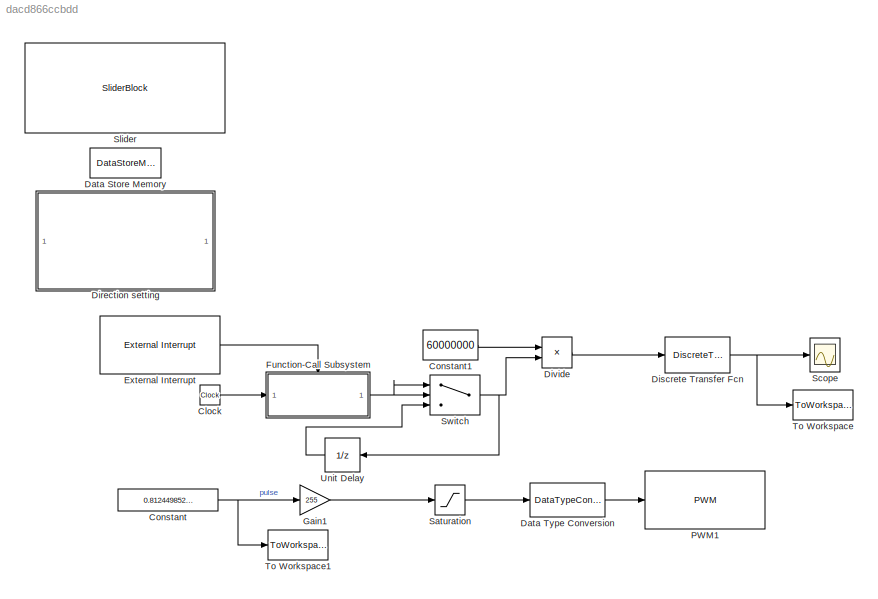
MODEL slx_dacd866ccbdd
KIND model
CONFIG AbsTol = auto
CONFIG EnableMultiTasking = off
CONFIG FixedStep = 0.01
CONFIG MaxStep = auto
CONFIG MinStep = auto
CONFIG RelTol = 1e-3
CONFIG SampleTimeConstraint = Unconstrained
CONFIG SolverName = ode4
CONFIG StartTime = 0.0
CONFIG StopTime = 5
BLOCK [Clock] Clock
BLOCK [Constant] Constant
  OutMax = 1
  OutMin = 0
  Value = 0.8124498529018455
BLOCK [Constant] Constant1
  Value = 60000000
BLOCK [DataStoreMemory] Data Store Memory
  DataStoreName = Previous_Time
  OutDataTypeStr = uint32
  ShowAdditionalParam = off
  SignalType = real
  WriteAfterWriteMsg = warning
BLOCK [DataTypeConversion] Data Type Conversion
  OutDataTypeStr = uint8
  RndMeth = Floor
  SaturateOnIntegerOverflow = off
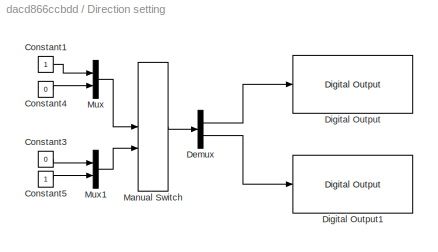
BLOCK [SubSystem] Direction setting
BLOCK [Constant] Direction setting/Constant1
  OutDataTypeStr = uint8
  OutMax = 1
  OutMin = 0
BLOCK [Constant] Direction setting/Constant3
  OutDataTypeStr = uint8
  OutMax = 1
  OutMin = 0
  Value = 0
BLOCK [Constant] Direction setting/Constant4
  OutDataTypeStr = uint8
  OutMax = 1
  OutMin = 0
  Value = 0
BLOCK [Constant] Direction setting/Constant5
  OutDataTypeStr = uint8
  OutMax = 1
  OutMin = 0
BLOCK [Demux] Direction setting/Demux
  Outputs = 2
BLOCK [Reference] Direction setting/Digital Output  REF=arduinolib/Digital Output
  SourceBlock = arduinolib/Digital Output
  SourceType = Arduino Digital Output
BLOCK [Reference] Direction setting/Digital Output1  REF=arduinolib/Digital Output
  SourceBlock = arduinolib/Digital Output
  SourceType = Arduino Digital Output
BLOCK [ManualSwitch] Direction setting/Manual Switch
BLOCK [Mux] Direction setting/Mux
  DisplayOption = bar
  Inputs = 2
BLOCK [Mux] Direction setting/Mux1
  DisplayOption = bar
  Inputs = 2
BLOCK [DiscreteTransferFcn] Discrete Transfer Fcn
  CloseFcn = dspblkCoreblockFVToolHelper(gcbh,'close');
  CopyFcn = dspblkCoreblockFVToolHelper(gcbh,'copy');
  DeleteFcn = dspblkCoreblockFVToolHelper(gcbh,'close');
  Denominator = [1 -0.9]
  InputPortMap = u0
  LoadFcn = dspblkCoreblockFVToolHelper(gcbh,'load');
  ModelCloseFcn = dspblkCoreblockFVToolHelper(gcbh,'close');
  Numerator = [0.1]
  PostSaveFcn = dspblkCoreblockFVToolHelper(gcbh,'postsave');
  PreSaveFcn = dspblkCoreblockFVToolHelper(gcbh,'presave');
BLOCK [Product] Divide
  Inputs = */
BLOCK [Reference] External Interrupt  REF=arduinolib/External Interrupt
  SourceBlock = arduinolib/External Interrupt
  SourceType = Arduino Interrupt Block
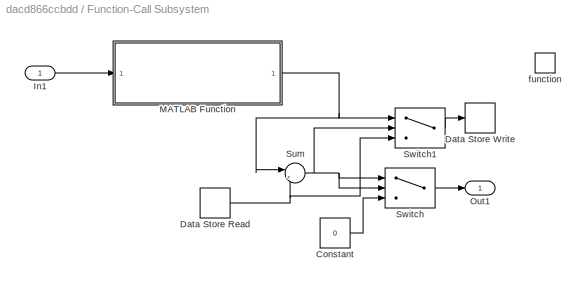
BLOCK [SubSystem] Function-Call Subsystem
  TreatAsAtomicUnit = on
BLOCK [Constant] Function-Call Subsystem/Constant
  Value = 0
BLOCK [DataStoreRead] Function-Call Subsystem/Data Store Read
  DataStoreName = Previous_Time
  IndexOptions = Index vector (dialog)
  Indices = 1
  OutputSizes = 1
  Priority = 1
BLOCK [DataStoreWrite] Function-Call Subsystem/Data Store Write
  DataStoreName = Previous_Time
  IndexOptions = Index vector (dialog)
  Indices = 1
  OutputSizes = 1
  Priority = 10
BLOCK [Inport] Function-Call Subsystem/In1
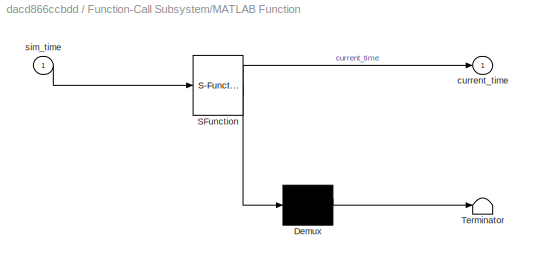
BLOCK [SubSystem] Function-Call Subsystem/MATLAB Function
  ErrorFcn = Stateflow.Translate.translate
  PermitHierarchicalResolution = ExplicitOnly
  SFBlockType = MATLAB Function
  TreatAsAtomicUnit = on
BLOCK [Demux] Function-Call Subsystem/MATLAB Function/ Demux 
  Outputs = 1
BLOCK [S-Function] Function-Call Subsystem/MATLAB Function/ SFunction 
  EnableBusSupport = off
  FunctionName = sf_sfun
  PortCounts = [1 2]
  SFcnIsStateOwnerBlock = off
  SFunctionDeploymentMode = off
  Tag = Stateflow S-Function 2
BLOCK [Terminator] Function-Call Subsystem/MATLAB Function/ Terminator 
BLOCK [Outport] Function-Call Subsystem/MATLAB Function/current_time
BLOCK [Inport] Function-Call Subsystem/MATLAB Function/sim_time
BLOCK [Outport] Function-Call Subsystem/Out1
BLOCK [Sum] Function-Call Subsystem/Sum
  Inputs = |+-
BLOCK [Switch] Function-Call Subsystem/Switch
  Criteria = u2 > Threshold
  InputSameDT = off
  SaturateOnIntegerOverflow = off
  Threshold = 2000
BLOCK [Switch] Function-Call Subsystem/Switch1
  Criteria = u2 > Threshold
  InputSameDT = off
  SaturateOnIntegerOverflow = off
  Threshold = 2000
BLOCK [TriggerPort] Function-Call Subsystem/function
  StatesWhenEnabling = held
  TriggerType = function-call
  VariantControl = (inherit)
BLOCK [Gain] Gain1
  Gain = 255
BLOCK [Reference] PWM1  REF=arduinolib/PWM
  SourceBlock = arduinolib/PWM
  SourceType = Arduino PWM
BLOCK [Saturate] Saturation
  LowerLimit = 0
  UpperLimit = 255
BLOCK [Scope] Scope
  ActiveDisplayYMaximum = 30812.632486585077
  ActiveDisplayYMinimum = -3423.6258318427854
  Floating = off
  GraphicalSettings = {"Style":{"BackgroundColor":[0.12941176470588237,0.12941176470588237,0.12941176470588237],"AxesColor":[0.07058823529411765,0.07058823529411765,0.07058823529411765],"LabelsColor":[0.8509803921568627,0.8509803921568627,0.8509803921568627],"PreserveColors":false,"Visible":[true],"LineStyle":["-"],"LineWidth":[1.5],"BarWidth":[0.9],"LineColor":["auto"],"LineFaceAlpha":[1],"LineEdgeAlpha":[1],"Marker":...<+2027ch>
  MultipleDisplayCache = [{"MaxYLimMag":30812.632486585077,"MaxYLimReal":30812.632486585077,"MinYLimMag":0,"MinYLimReal":-3423.6258318427854,"PlotAsMagnitudePhase":false,"ShowGrid":true,"ShowLegend":false,"Title":"%<SignalLabel>","YLabel":""}]
  NumInputPorts = 1
  ScopeFrameLocation = window
  WasSavedAsWebScope = on
  WindowPosition = [1018.000000,371.000000,451.000000,420.000000,]
BLOCK [SliderBlock] Slider
  ScaleMax = 1
BLOCK [Switch] Switch
  Criteria = u2 > Threshold
  InputSameDT = off
  SaturateOnIntegerOverflow = off
BLOCK [ToWorkspace] To Workspace
  FixptAsFi = on
  MaxDataPoints = inf
  SampleTime = -1
  SaveFormat = Timeseries
  VariableName = outputesp
BLOCK [ToWorkspace] To Workspace1
  FixptAsFi = on
  MaxDataPoints = inf
  SampleTime = -1
  SaveFormat = Timeseries
  VariableName = espdesire
BLOCK [UnitDelay] Unit Delay
  HasFrameUpgradeWarning = on
  InitialCondition = 60000000
  NameLocation = top
  SampleTime = -1
LINE Clock:1 -> Function-Call Subsystem:1
LINE Constant1:1 -> Divide:1
NET Constant:1 -> Gain1:1, To Workspace1:1
LINE Data Type Conversion:1 -> PWM1:1
LINE Direction setting/Constant1:1 -> Direction setting/Mux:1
LINE Direction setting/Constant3:1 -> Direction setting/Mux1:1
LINE Direction setting/Constant4:1 -> Direction setting/Mux:2
LINE Direction setting/Constant5:1 -> Direction setting/Mux1:2
LINE Direction setting/Demux:1 -> Direction setting/Digital Output:1
LINE Direction setting/Demux:2 -> Direction setting/Digital Output1:1
LINE Direction setting/Manual Switch:1 -> Direction setting/Demux:1
LINE Direction setting/Mux1:1 -> Direction setting/Manual Switch:2
LINE Direction setting/Mux:1 -> Direction setting/Manual Switch:1
NET Discrete Transfer Fcn:1 -> Scope:1, To Workspace:1
LINE Divide:1 -> Discrete Transfer Fcn:1
LINE External Interrupt:1 -> Function-Call Subsystem:trigger
LINE Function-Call Subsystem/Constant:1 -> Function-Call Subsystem/Switch:3
NET Function-Call Subsystem/Data Store Read:1 -> Function-Call Subsystem/Sum:2, Function-Call Subsystem/Switch1:3
LINE Function-Call Subsystem/In1:1 -> Function-Call Subsystem/MATLAB Function:1
NET Function-Call Subsystem/MATLAB Function:1 -> Function-Call Subsystem/Sum:1, Function-Call Subsystem/Switch1:1
NET Function-Call Subsystem/Sum:1 -> Function-Call Subsystem/Switch1:2, Function-Call Subsystem/Switch:1, Function-Call Subsystem/Switch:2
LINE Function-Call Subsystem/Switch1:1 -> Function-Call Subsystem/Data Store Write:1
LINE Function-Call Subsystem/Switch:1 -> Function-Call Subsystem/Out1:1
NET Function-Call Subsystem:1 -> Switch:1, Switch:2
LINE Gain1:1 -> Saturation:1
LINE Saturation:1 -> Data Type Conversion:1
NET Switch:1 -> Divide:2, Unit Delay:1
LINE Unit Delay:1 -> Switch:3
note: NET lines group one-source signal fan-out (src -> all destinations, sorted); 1:1 wires keep LINE
CHART Function-Call
Subsystem/MATLAB Function states=1 transitions=1
  STATE_LABEL 'eML_blk_kernel()'
  STATE_LABEL "SCRIPT:\nfunction current_time = get_micros(sim_time)\n    current_time = uint32(0); \n    \n    if coder.target('rtw')\n        % --- HARDWARE MODE (ESP32) ---\n        % Call the C function 'micros()' directly\n        current_time = coder.ceval('micros'); \n        \n    else\n        % --- SIMULATION MODE (Computer) ---\n        % Convert the Simulation Time (seconds) to Microseconds\n        % 1 second =...<+86ch>"
CHART  states=0 transitions=0
